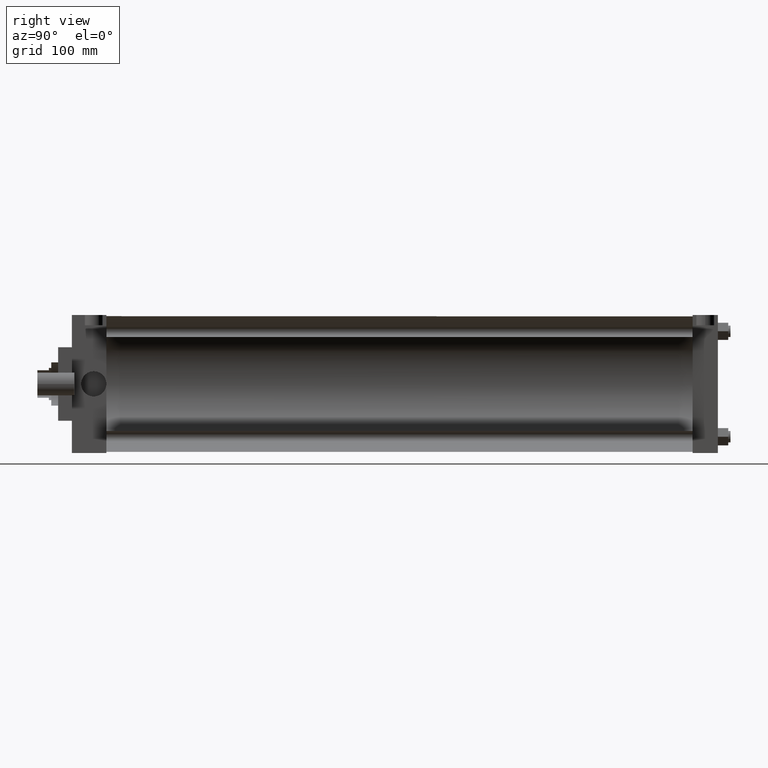
[diagram: clean part render]
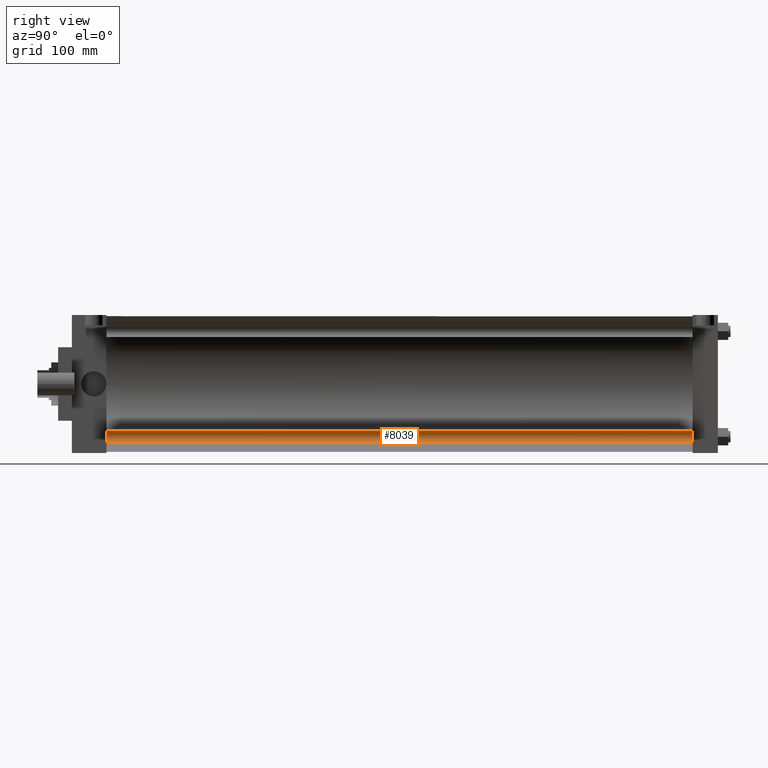
[diagram: same view with one face highlighted and labeled with its STEP entity id]
A machine part, right view. The second image highlights one B-rep face of the part: STEP entity #8039.
In plain terms, the highlighted cylindrical surface (bore or boss wall) has radius 7.9375 mm, axis along (0, -1, 0).
Its self-contained STEP definition (entity closure, byte-faithful):
#485=EDGE_CURVE('',#491,#491,#486,.T.);
#486=CIRCLE('',#487,7.937500000E+000);
#487=AXIS2_PLACEMENT_3D('',#488,#489,#490);
#488=CARTESIAN_POINT('',(7.277100000E+001,9.525000000E+001,-7.277100000E+001));
#489=DIRECTION('',(0.0E+000,-1.0E+000,0.0E+000));
#490=DIRECTION('',(0.0E+000,0.0E+000,-1.0E+000));
#491=VERTEX_POINT('',#492);
#492=CARTESIAN_POINT('',(7.277100000E+001,9.525000000E+001,-8.070850000E+001));
#1366=FACE_OUTER_BOUND('',#1368,.T.);
#1367=FACE_BOUND('',#1369,.T.);
#1368=EDGE_LOOP('',(#1370));
#1369=EDGE_LOOP('',(#1371));
#1370=ORIENTED_EDGE('',*,*,#1420,.F.);
#1371=ORIENTED_EDGE('',*,*,#485,.F.);
#1372=CYLINDRICAL_SURFACE('',#1373,7.937500000E+000);
#1373=AXIS2_PLACEMENT_3D('',#1374,#1375,#1376);
#1374=CARTESIAN_POINT('',(7.277100000E+001,9.048750000E+002,-7.277100000E+001));
#1375=DIRECTION('',(0.0E+000,-1.0E+000,0.0E+000));
#1376=DIRECTION('',(0.0E+000,0.0E+000,-1.0E+000));
#1420=EDGE_CURVE('',#1426,#1426,#1421,.T.);
#1421=CIRCLE('',#1422,7.937500000E+000);
#1422=AXIS2_PLACEMENT_3D('',#1423,#1424,#1425);
#1423=CARTESIAN_POINT('',(7.277100000E+001,9.048750000E+002,-7.277100000E+001));
#1424=DIRECTION('',(0.0E+000,1.0E+000,0.0E+000));
#1425=DIRECTION('',(1.0E+000,0.0E+000,0.0E+000));
#1426=VERTEX_POINT('',#1427);
#1427=CARTESIAN_POINT('',(8.070850000E+001,9.048750000E+002,-7.277100000E+001));
#8039=ADVANCED_FACE('',(#1366,#1367),#1372,.T.);